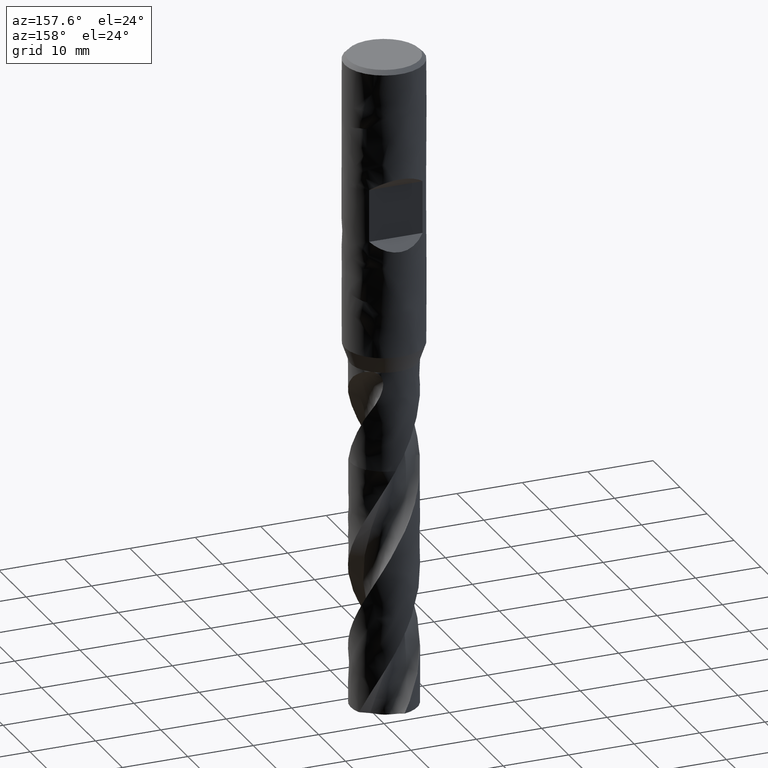
[diagram: clean part render]
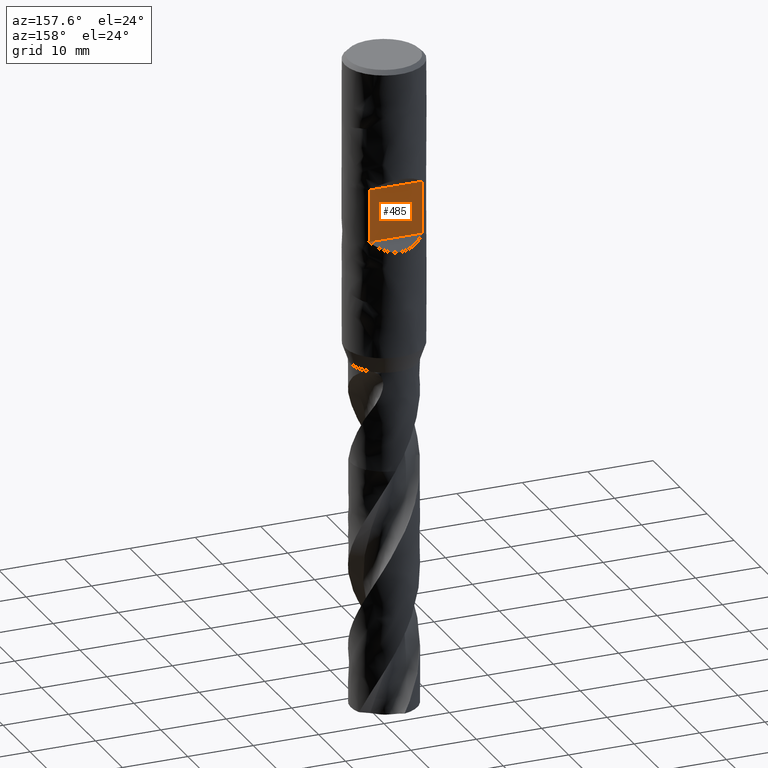
[diagram: same view with one face highlighted and labeled with its STEP entity id]
A machine part, auxiliary view. The second image highlights one B-rep face of the part: STEP entity #485.
In plain terms, the highlighted planar face has unit normal (0, 1, 0).
Its self-contained STEP definition (entity closure, byte-faithful):
#274 = EDGE_CURVE('', #275, #277, #279, .T.);
#275 = VERTEX_POINT('', #276);
#276 = CARTESIAN_POINT('', (4.07921561087423, 4.4, -18.5));
#277 = VERTEX_POINT('', #278);
#278 = CARTESIAN_POINT('', (4.07921561087423, 4.4, -26.5));
#279 = LINE('', #280, #281);
#280 = CARTESIAN_POINT('', (4.07921561087423, 4.4, -18.5));
#281 = VECTOR('', #282, 8.);
#282 = DIRECTION('', (-8.88178419700125E-16, 0., -8.));
#285 = VERTEX_POINT('', #286);
#286 = CARTESIAN_POINT('', (-4.07921561087423, 4.4, -18.5));
#374 = EDGE_CURVE('', #285, #375, #377, .T.);
#375 = VERTEX_POINT('', #376);
#376 = CARTESIAN_POINT('', (-4.07921561087423, 4.4, -26.5));
#377 = LINE('', #378, #379);
#378 = CARTESIAN_POINT('', (-4.07921561087423, 4.4, -18.5));
#379 = VECTOR('', #380, 8.);
#380 = DIRECTION('', (0., 8.88178419700125E-16, -8.));
#485 = ADVANCED_FACE('', (#486), #502, .T.);
#486 = FACE_OUTER_BOUND('', #487, .T.);
#487 = EDGE_LOOP('', (#488, #489, #495, #496));
#488 = ORIENTED_EDGE('', *, *, #274, .T.);
#489 = ORIENTED_EDGE('', *, *, #490, .T.);
#490 = EDGE_CURVE('', #277, #375, #491, .T.);
#491 = LINE('', #492, #493);
#492 = CARTESIAN_POINT('', (4.07921561087423, 4.4, -26.5));
#493 = VECTOR('', #494, 8.15843122174846);
#494 = DIRECTION('', (-8.15843122174846, 8.88178419700125E-16, 0.));
#495 = ORIENTED_EDGE('', *, *, #374, .F.);
#496 = ORIENTED_EDGE('', *, *, #497, .F.);
#497 = EDGE_CURVE('', #275, #285, #498, .T.);
#498 = LINE('', #499, #500);
#499 = CARTESIAN_POINT('', (4.07921561087423, 4.4, -18.5));
#500 = VECTOR('', #501, 8.15843122174845);
#501 = DIRECTION('', (-8.15843122174845, 8.88178419700125E-16, 0.));
#502 = PLANE('', #503);
#503 = AXIS2_PLACEMENT_3D('', #504, #505, #506);
#504 = CARTESIAN_POINT('', (6., 4.4, -26.5));
#505 = DIRECTION('', (1.48029736616688E-16, 1., 0.));
#506 = DIRECTION('', (-1., 1.48029736616688E-16, 0.));